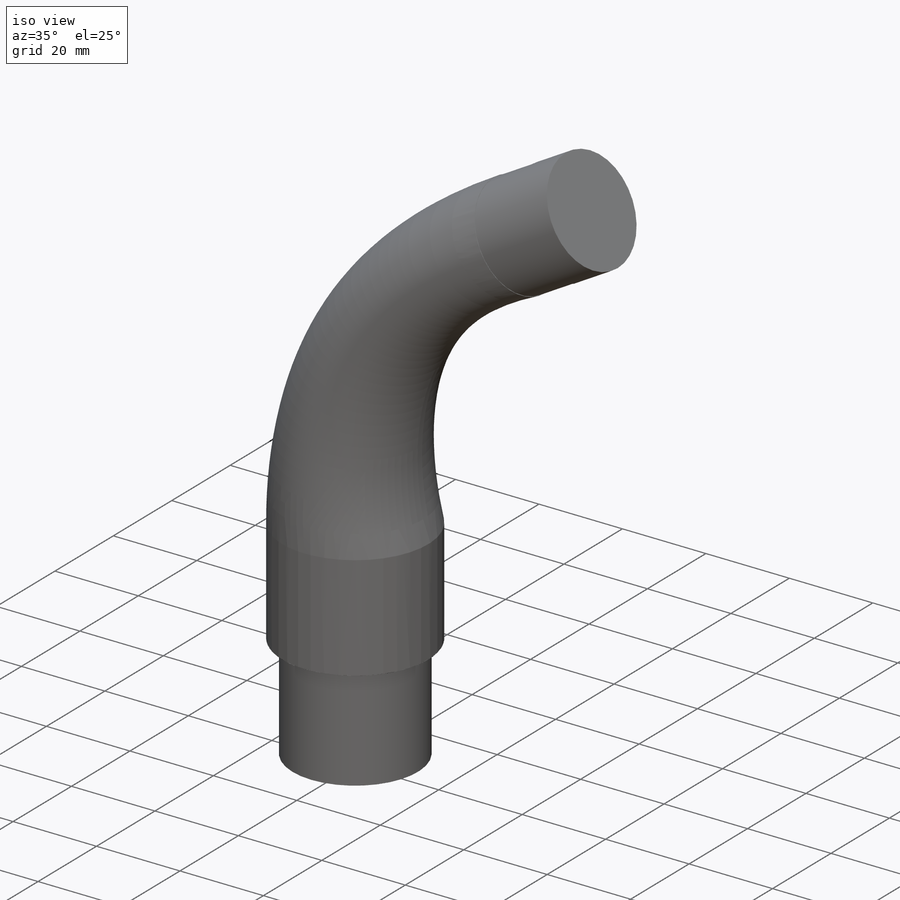
[diagram: iso view]
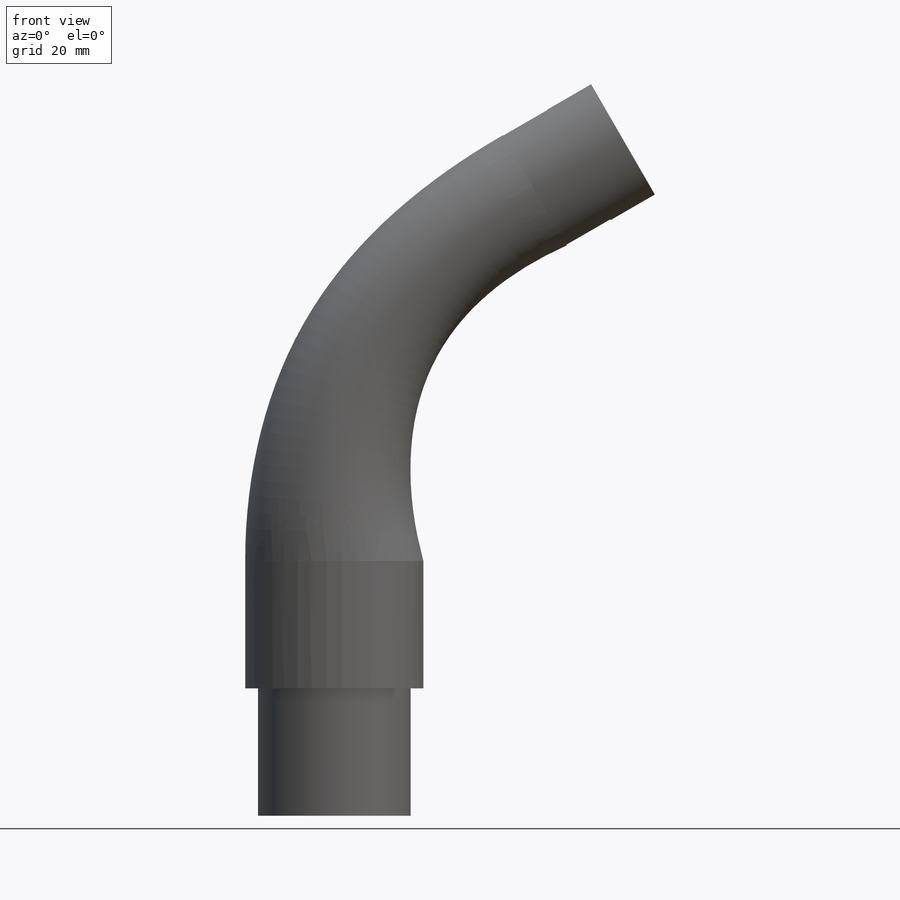
[diagram: front view]
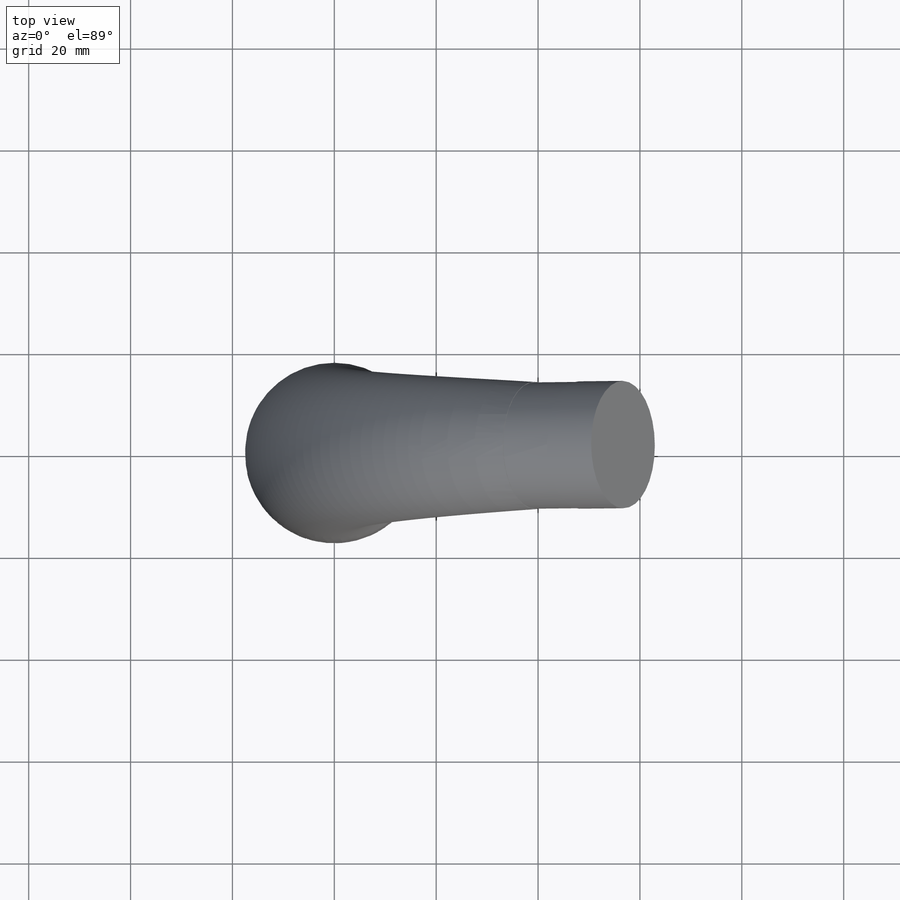
[diagram: top view]
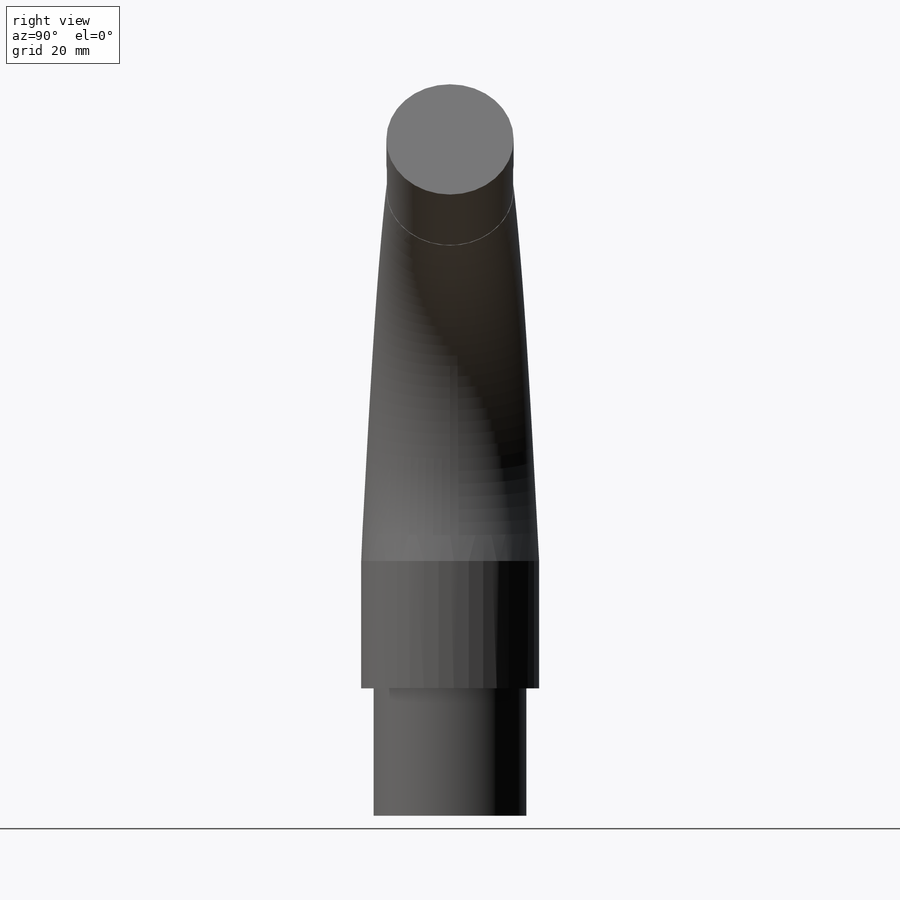
[diagram: right view]
SOLIDWORKS PART (.sldprt)
format: sldprt  version: not decoded by parser v0  size: 3,369,984 bytes
history: native  units: mm
features: sketch x19, plane x5, extrude x4, fillet x2, cut_revolve x2, material x1, delete_body x1 (+10 scaffold rows collapsed)
feature tree (44):
  scaffold x10  (default folders/planes/origin — collapsed)
  material  "ABS"
  plane  "Ebene vorne"
  plane  "Ebene oben"
  plane  "Ebene rechts"
  sketch  "Skizze12"
  sketch  "Skizze1"  dims[D1=105.0mm D2=95.0mm]
  extrude  "Grundplatte"  Depth=25mm
  plane  "Ebene3"
  plane  "Ebene4"  Offset=25mm
  sketch  "Skizze3"  dims[D1=40.0mm D2=4.5mm]
  sketch  "Skizze7"  dims[D1=30.0mm D2=39.0mm D3=65.0mm]
  sketch  "Skizze6"
  sketch  "Skizze9"  dims[D1=40.0mm]
  sketch  "Skizze10"  dims[D2=30.0mm D1=65.0mm]
  sketch  "Skizze8"  dims[D1=4.0mm]
  sketch  "Skizze5"  dims[c1.D1=9.0mm c1.D2=7.3mm c1.D3=4.5mm c1.D4=30.0mm c1.D5=41.0mm c1.D6=4.5mm c2.D6=4.5mm c2.D2=7.5mm c2.D7=7.5mm c2.D8=7.5mm c3.D8=40.0mm c3.D2=45.0mm c3.D3=~5.311516mm c4.D3=~5.311516mm c4.D5=7.5mm c4.D4=5.5mm c5.D4=5.5mm c5.D5=30.0mm c5.D3=61.0mm c5.D6=2.75mm c5.D1=65.0mm c5.D8=~6.936654mm c6.D3=71.0mm c6.D5=25.0mm c6.D4=2.75mm c6.D6=35.5mm]
  fillet  "Verrundung3"  Radius=3mm
  extrude  "Aufsatz-Linear austragen2"  Depth=10mm
  sketch  "Skizze14"  dims[D1=25.0mm]
  extrude  "Aufsatz-Linear austragen3"  Depth=10mm
  sketch  "Skizze15"  dims[D1=30.0mm]
  extrude  "Aufsatz-Linear austragen4"  Depth=25mm
  sketch  "Skizze16"  dims[D1=2.5mm D2=2.5mm]
  sketch  "Skizze17"  dims[D1=2.5mm]
  sketch  "Skizze18"  dims[D1=2.5mm]
  fillet  "Ausformung19"  [1 undecoded]
  sketch  "Skizze19"  dims[D1=35.0mm D2=17.5mm D3=35.0mm]
  cut_revolve  "Schnitt-Rotation1"  Angle=360deg
  sketch  "Skizze21"
  cut_revolve  "Schnitt-Rotation2"  Angle=360deg
  sketch  "Skizze22"  dims[D1=50.0mm]
  sketch  "Skizze23"
  sketch  "Skizze24"
  delete_body  "Körper-Löschen1"
decode coverage: 21 of 28 modeling features carry decoded parameters
note: ~ marks probable driven/reference dimensions
note: 1 parameter value undecoded
note: suppression state not decoded; provenance and decode notes live in map.json
